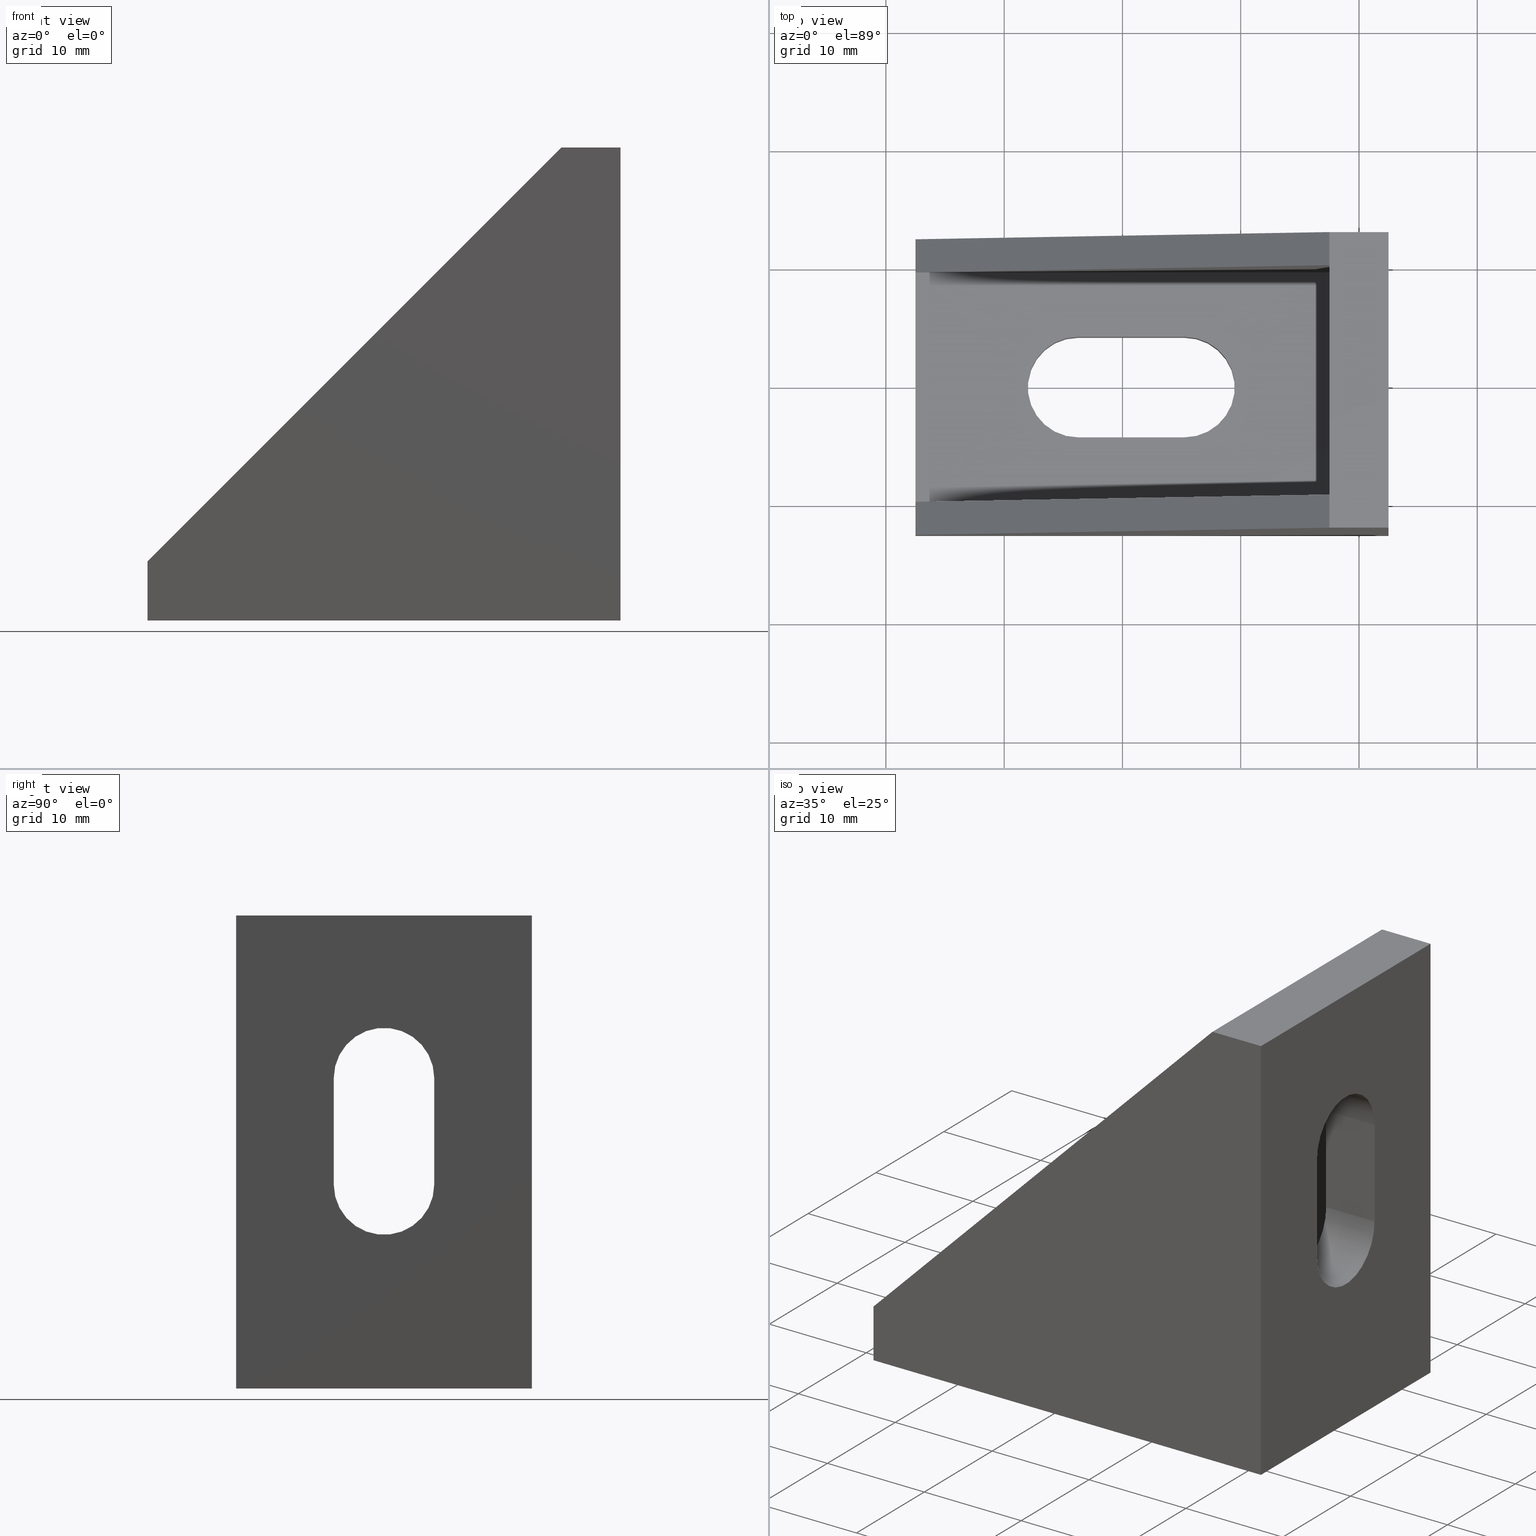
[diagram: canonical four-view strip — front | top / right | iso, engineering-drawing reading convention]
A machine part, canonical four-view strip (front | top / right | iso — engineering-drawing reading convention). The complete STEP part file that produces these views, byte-faithful:
ISO-10303-21;
HEADER;
/* Generated by software containing ST-Developer
 * from STEP Tools, Inc. (www.steptools.com) 
 */

FILE_DESCRIPTION(
/* description */ ('SQUADRETTA 40X40 L=25 ALL.'),
/* implementation_level */ '2;1');

FILE_NAME(
/* name */ 'C:\\Users\\Tecnico4\\Desktop\\DSQAL0000005.stp',
/* time_stamp */ '2024-08-07T11:08:25+02:00',
/* author */ ('tecnico4'),
/* organization */ (''),
/* preprocessor_version */ 'ST-DEVELOPER v18.1',
/* originating_system */ 'Autodesk Inventor 2022',
/* authorisation */ '');

FILE_SCHEMA (('AUTOMOTIVE_DESIGN { 1 0 10303 214 3 1 1 }'));
ENDSEC;

DATA;
#10=MECHANICAL_DESIGN_GEOMETRIC_PRESENTATION_REPRESENTATION('',(#13),#670);
#11=SHAPE_REPRESENTATION_RELATIONSHIP('SRR','None',#677,#12);
#12=ADVANCED_BREP_SHAPE_REPRESENTATION('',(#14),#669);
#13=STYLED_ITEM('',(#686),#14);
#14=MANIFOLD_SOLID_BREP('None',#401);
#15=FACE_BOUND('',#64,.T.);
#16=FACE_BOUND('',#66,.T.);
#17=FACE_BOUND('',#75,.T.);
#18=FACE_BOUND('',#77,.T.);
#19=PLANE('',#427);
#20=PLANE('',#431);
#21=PLANE('',#435);
#22=PLANE('',#439);
#23=PLANE('',#440);
#24=PLANE('',#441);
#25=PLANE('',#442);
#26=PLANE('',#443);
#27=PLANE('',#444);
#28=PLANE('',#445);
#29=PLANE('',#446);
#30=PLANE('',#447);
#31=PLANE('',#448);
#32=PLANE('',#449);
#33=PLANE('',#450);
#34=PLANE('',#451);
#35=FACE_OUTER_BOUND('',#55,.T.);
#36=FACE_OUTER_BOUND('',#56,.T.);
#37=FACE_OUTER_BOUND('',#57,.T.);
#38=FACE_OUTER_BOUND('',#58,.T.);
#39=FACE_OUTER_BOUND('',#59,.T.);
#40=FACE_OUTER_BOUND('',#60,.T.);
#41=FACE_OUTER_BOUND('',#61,.T.);
#42=FACE_OUTER_BOUND('',#62,.T.);
#43=FACE_OUTER_BOUND('',#63,.T.);
#44=FACE_OUTER_BOUND('',#65,.T.);
#45=FACE_OUTER_BOUND('',#67,.T.);
#46=FACE_OUTER_BOUND('',#68,.T.);
#47=FACE_OUTER_BOUND('',#69,.T.);
#48=FACE_OUTER_BOUND('',#70,.T.);
#49=FACE_OUTER_BOUND('',#71,.T.);
#50=FACE_OUTER_BOUND('',#72,.T.);
#51=FACE_OUTER_BOUND('',#73,.T.);
#52=FACE_OUTER_BOUND('',#74,.T.);
#53=FACE_OUTER_BOUND('',#76,.T.);
#54=FACE_OUTER_BOUND('',#78,.T.);
#55=EDGE_LOOP('',(#269,#270,#271,#272));
#56=EDGE_LOOP('',(#273,#274,#275,#276));
#57=EDGE_LOOP('',(#277,#278,#279,#280));
#58=EDGE_LOOP('',(#281,#282,#283,#284));
#59=EDGE_LOOP('',(#285,#286,#287,#288));
#60=EDGE_LOOP('',(#289,#290,#291,#292));
#61=EDGE_LOOP('',(#293,#294,#295,#296));
#62=EDGE_LOOP('',(#297,#298,#299,#300));
#63=EDGE_LOOP('',(#301,#302,#303,#304));
#64=EDGE_LOOP('',(#305,#306,#307,#308));
#65=EDGE_LOOP('',(#309,#310,#311,#312));
#66=EDGE_LOOP('',(#313,#314,#315,#316));
#67=EDGE_LOOP('',(#317,#318,#319,#320));
#68=EDGE_LOOP('',(#321,#322,#323,#324,#325));
#69=EDGE_LOOP('',(#326,#327,#328,#329,#330));
#70=EDGE_LOOP('',(#331,#332,#333,#334));
#71=EDGE_LOOP('',(#335,#336,#337,#338,#339));
#72=EDGE_LOOP('',(#340,#341,#342,#343,#344));
#73=EDGE_LOOP('',(#345,#346,#347,#348,#349,#350,#351,#352));
#74=EDGE_LOOP('',(#353,#354,#355,#356));
#75=EDGE_LOOP('',(#357,#358,#359,#360));
#76=EDGE_LOOP('',(#361,#362,#363,#364));
#77=EDGE_LOOP('',(#365,#366,#367,#368));
#78=EDGE_LOOP('',(#369,#370,#371,#372,#373,#374,#375,#376));
#79=LINE('',#562,#125);
#80=LINE('',#565,#126);
#81=LINE('',#568,#127);
#82=LINE('',#570,#128);
#83=LINE('',#571,#129);
#84=LINE('',#576,#130);
#85=LINE('',#579,#131);
#86=LINE('',#580,#132);
#87=LINE('',#586,#133);
#88=LINE('',#589,#134);
#89=LINE('',#592,#135);
#90=LINE('',#594,#136);
#91=LINE('',#595,#137);
#92=LINE('',#600,#138);
#93=LINE('',#603,#139);
#94=LINE('',#604,#140);
#95=LINE('',#608,#141);
#96=LINE('',#610,#142);
#97=LINE('',#612,#143);
#98=LINE('',#613,#144);
#99=LINE('',#616,#145);
#100=LINE('',#618,#146);
#101=LINE('',#619,#147);
#102=LINE('',#623,#148);
#103=LINE('',#625,#149);
#104=LINE('',#627,#150);
#105=LINE('',#628,#151);
#106=LINE('',#630,#152);
#107=LINE('',#631,#153);
#108=LINE('',#635,#154);
#109=LINE('',#637,#155);
#110=LINE('',#638,#156);
#111=LINE('',#639,#157);
#112=LINE('',#643,#158);
#113=LINE('',#645,#159);
#114=LINE('',#647,#160);
#115=LINE('',#648,#161);
#116=LINE('',#650,#162);
#117=LINE('',#651,#163);
#118=LINE('',#654,#164);
#119=LINE('',#656,#165);
#120=LINE('',#658,#166);
#121=LINE('',#659,#167);
#122=LINE('',#661,#168);
#123=LINE('',#663,#169);
#124=LINE('',#665,#170);
#125=VECTOR('',#458,10.);
#126=VECTOR('',#461,10.);
#127=VECTOR('',#464,10.);
#128=VECTOR('',#465,10.);
#129=VECTOR('',#466,10.);
#130=VECTOR('',#471,10.);
#131=VECTOR('',#476,10.);
#132=VECTOR('',#477,10.);
#133=VECTOR('',#482,10.);
#134=VECTOR('',#485,10.);
#135=VECTOR('',#488,10.);
#136=VECTOR('',#489,10.);
#137=VECTOR('',#490,10.);
#138=VECTOR('',#495,10.);
#139=VECTOR('',#500,10.);
#140=VECTOR('',#501,10.);
#141=VECTOR('',#504,15.);
#142=VECTOR('',#505,32.9999999998681);
#143=VECTOR('',#506,15.);
#144=VECTOR('',#507,32.9999999998681);
#145=VECTOR('',#510,32.9999999998681);
#146=VECTOR('',#511,15.);
#147=VECTOR('',#512,32.9999999998681);
#148=VECTOR('',#515,46.669047558126);
#149=VECTOR('',#516,10.);
#150=VECTOR('',#517,46.669047558126);
#151=VECTOR('',#518,10.);
#152=VECTOR('',#521,10.);
#153=VECTOR('',#522,10.);
#154=VECTOR('',#525,39.9999999998399);
#155=VECTOR('',#526,39.9999999998399);
#156=VECTOR('',#527,6.99999999997181);
#157=VECTOR('',#528,6.99999999997181);
#158=VECTOR('',#531,10.);
#159=VECTOR('',#532,46.669047558126);
#160=VECTOR('',#533,10.);
#161=VECTOR('',#534,46.669047558126);
#162=VECTOR('',#537,10.);
#163=VECTOR('',#538,10.);
#164=VECTOR('',#541,6.99999999997181);
#165=VECTOR('',#542,6.99999999997181);
#166=VECTOR('',#543,39.9999999998399);
#167=VECTOR('',#544,39.9999999998399);
#168=VECTOR('',#547,25.);
#169=VECTOR('',#550,25.);
#170=VECTOR('',#553,25.);
#171=CIRCLE('',#425,4.25);
#172=CIRCLE('',#426,4.25);
#173=CIRCLE('',#429,4.25);
#174=CIRCLE('',#430,4.25);
#175=CIRCLE('',#433,4.25);
#176=CIRCLE('',#434,4.25);
#177=CIRCLE('',#437,4.25);
#178=CIRCLE('',#438,4.25);
#179=VERTEX_POINT('',#558);
#180=VERTEX_POINT('',#559);
#181=VERTEX_POINT('',#561);
#182=VERTEX_POINT('',#563);
#183=VERTEX_POINT('',#567);
#184=VERTEX_POINT('',#569);
#185=VERTEX_POINT('',#573);
#186=VERTEX_POINT('',#575);
#187=VERTEX_POINT('',#582);
#188=VERTEX_POINT('',#583);
#189=VERTEX_POINT('',#585);
#190=VERTEX_POINT('',#587);
#191=VERTEX_POINT('',#591);
#192=VERTEX_POINT('',#593);
#193=VERTEX_POINT('',#597);
#194=VERTEX_POINT('',#599);
#195=VERTEX_POINT('',#606);
#196=VERTEX_POINT('',#607);
#197=VERTEX_POINT('',#609);
#198=VERTEX_POINT('',#611);
#199=VERTEX_POINT('',#615);
#200=VERTEX_POINT('',#617);
#201=VERTEX_POINT('',#621);
#202=VERTEX_POINT('',#622);
#203=VERTEX_POINT('',#624);
#204=VERTEX_POINT('',#626);
#205=VERTEX_POINT('',#633);
#206=VERTEX_POINT('',#634);
#207=VERTEX_POINT('',#636);
#208=VERTEX_POINT('',#641);
#209=VERTEX_POINT('',#642);
#210=VERTEX_POINT('',#644);
#211=VERTEX_POINT('',#646);
#212=VERTEX_POINT('',#653);
#213=VERTEX_POINT('',#655);
#214=VERTEX_POINT('',#657);
#215=EDGE_CURVE('',#179,#180,#171,.T.);
#216=EDGE_CURVE('',#179,#181,#79,.T.);
#217=EDGE_CURVE('',#182,#181,#172,.T.);
#218=EDGE_CURVE('',#180,#182,#80,.T.);
#219=EDGE_CURVE('',#183,#179,#81,.T.);
#220=EDGE_CURVE('',#183,#184,#82,.T.);
#221=EDGE_CURVE('',#181,#184,#83,.T.);
#222=EDGE_CURVE('',#185,#183,#173,.T.);
#223=EDGE_CURVE('',#185,#186,#84,.T.);
#224=EDGE_CURVE('',#184,#186,#174,.T.);
#225=EDGE_CURVE('',#180,#185,#85,.T.);
#226=EDGE_CURVE('',#186,#182,#86,.T.);
#227=EDGE_CURVE('',#187,#188,#175,.T.);
#228=EDGE_CURVE('',#187,#189,#87,.T.);
#229=EDGE_CURVE('',#190,#189,#176,.T.);
#230=EDGE_CURVE('',#188,#190,#88,.T.);
#231=EDGE_CURVE('',#191,#187,#89,.T.);
#232=EDGE_CURVE('',#191,#192,#90,.T.);
#233=EDGE_CURVE('',#189,#192,#91,.T.);
#234=EDGE_CURVE('',#193,#191,#177,.T.);
#235=EDGE_CURVE('',#193,#194,#92,.T.);
#236=EDGE_CURVE('',#192,#194,#178,.T.);
#237=EDGE_CURVE('',#188,#193,#93,.T.);
#238=EDGE_CURVE('',#194,#190,#94,.T.);
#239=EDGE_CURVE('',#195,#196,#95,.T.);
#240=EDGE_CURVE('',#197,#196,#96,.T.);
#241=EDGE_CURVE('',#198,#197,#97,.T.);
#242=EDGE_CURVE('',#198,#195,#98,.T.);
#243=EDGE_CURVE('',#199,#195,#99,.T.);
#244=EDGE_CURVE('',#199,#200,#100,.T.);
#245=EDGE_CURVE('',#200,#196,#101,.T.);
#246=EDGE_CURVE('',#201,#202,#102,.T.);
#247=EDGE_CURVE('',#203,#201,#103,.T.);
#248=EDGE_CURVE('',#203,#204,#104,.T.);
#249=EDGE_CURVE('',#204,#202,#105,.F.);
#250=EDGE_CURVE('',#204,#200,#106,.T.);
#251=EDGE_CURVE('',#203,#197,#107,.T.);
#252=EDGE_CURVE('',#205,#206,#108,.T.);
#253=EDGE_CURVE('',#206,#207,#109,.T.);
#254=EDGE_CURVE('',#207,#201,#110,.T.);
#255=EDGE_CURVE('',#202,#205,#111,.T.);
#256=EDGE_CURVE('',#208,#209,#112,.F.);
#257=EDGE_CURVE('',#209,#210,#113,.T.);
#258=EDGE_CURVE('',#211,#210,#114,.T.);
#259=EDGE_CURVE('',#208,#211,#115,.T.);
#260=EDGE_CURVE('',#210,#198,#116,.T.);
#261=EDGE_CURVE('',#209,#199,#117,.T.);
#262=EDGE_CURVE('',#208,#212,#118,.T.);
#263=EDGE_CURVE('',#213,#211,#119,.T.);
#264=EDGE_CURVE('',#214,#213,#120,.T.);
#265=EDGE_CURVE('',#212,#214,#121,.T.);
#266=EDGE_CURVE('',#212,#205,#122,.T.);
#267=EDGE_CURVE('',#214,#206,#123,.T.);
#268=EDGE_CURVE('',#213,#207,#124,.T.);
#269=ORIENTED_EDGE('',*,*,#215,.F.);
#270=ORIENTED_EDGE('',*,*,#216,.T.);
#271=ORIENTED_EDGE('',*,*,#217,.F.);
#272=ORIENTED_EDGE('',*,*,#218,.F.);
#273=ORIENTED_EDGE('',*,*,#219,.F.);
#274=ORIENTED_EDGE('',*,*,#220,.T.);
#275=ORIENTED_EDGE('',*,*,#221,.F.);
#276=ORIENTED_EDGE('',*,*,#216,.F.);
#277=ORIENTED_EDGE('',*,*,#222,.F.);
#278=ORIENTED_EDGE('',*,*,#223,.T.);
#279=ORIENTED_EDGE('',*,*,#224,.F.);
#280=ORIENTED_EDGE('',*,*,#220,.F.);
#281=ORIENTED_EDGE('',*,*,#225,.F.);
#282=ORIENTED_EDGE('',*,*,#218,.T.);
#283=ORIENTED_EDGE('',*,*,#226,.F.);
#284=ORIENTED_EDGE('',*,*,#223,.F.);
#285=ORIENTED_EDGE('',*,*,#227,.F.);
#286=ORIENTED_EDGE('',*,*,#228,.T.);
#287=ORIENTED_EDGE('',*,*,#229,.F.);
#288=ORIENTED_EDGE('',*,*,#230,.F.);
#289=ORIENTED_EDGE('',*,*,#231,.F.);
#290=ORIENTED_EDGE('',*,*,#232,.T.);
#291=ORIENTED_EDGE('',*,*,#233,.F.);
#292=ORIENTED_EDGE('',*,*,#228,.F.);
#293=ORIENTED_EDGE('',*,*,#234,.F.);
#294=ORIENTED_EDGE('',*,*,#235,.T.);
#295=ORIENTED_EDGE('',*,*,#236,.F.);
#296=ORIENTED_EDGE('',*,*,#232,.F.);
#297=ORIENTED_EDGE('',*,*,#237,.F.);
#298=ORIENTED_EDGE('',*,*,#230,.T.);
#299=ORIENTED_EDGE('',*,*,#238,.F.);
#300=ORIENTED_EDGE('',*,*,#235,.F.);
#301=ORIENTED_EDGE('',*,*,#239,.T.);
#302=ORIENTED_EDGE('',*,*,#240,.F.);
#303=ORIENTED_EDGE('',*,*,#241,.F.);
#304=ORIENTED_EDGE('',*,*,#242,.T.);
#305=ORIENTED_EDGE('',*,*,#215,.T.);
#306=ORIENTED_EDGE('',*,*,#225,.T.);
#307=ORIENTED_EDGE('',*,*,#222,.T.);
#308=ORIENTED_EDGE('',*,*,#219,.T.);
#309=ORIENTED_EDGE('',*,*,#239,.F.);
#310=ORIENTED_EDGE('',*,*,#243,.F.);
#311=ORIENTED_EDGE('',*,*,#244,.T.);
#312=ORIENTED_EDGE('',*,*,#245,.T.);
#313=ORIENTED_EDGE('',*,*,#227,.T.);
#314=ORIENTED_EDGE('',*,*,#237,.T.);
#315=ORIENTED_EDGE('',*,*,#234,.T.);
#316=ORIENTED_EDGE('',*,*,#231,.T.);
#317=ORIENTED_EDGE('',*,*,#246,.F.);
#318=ORIENTED_EDGE('',*,*,#247,.F.);
#319=ORIENTED_EDGE('',*,*,#248,.T.);
#320=ORIENTED_EDGE('',*,*,#249,.T.);
#321=ORIENTED_EDGE('',*,*,#245,.F.);
#322=ORIENTED_EDGE('',*,*,#250,.F.);
#323=ORIENTED_EDGE('',*,*,#248,.F.);
#324=ORIENTED_EDGE('',*,*,#251,.T.);
#325=ORIENTED_EDGE('',*,*,#240,.T.);
#326=ORIENTED_EDGE('',*,*,#252,.T.);
#327=ORIENTED_EDGE('',*,*,#253,.T.);
#328=ORIENTED_EDGE('',*,*,#254,.T.);
#329=ORIENTED_EDGE('',*,*,#246,.T.);
#330=ORIENTED_EDGE('',*,*,#255,.T.);
#331=ORIENTED_EDGE('',*,*,#256,.T.);
#332=ORIENTED_EDGE('',*,*,#257,.T.);
#333=ORIENTED_EDGE('',*,*,#258,.F.);
#334=ORIENTED_EDGE('',*,*,#259,.F.);
#335=ORIENTED_EDGE('',*,*,#242,.F.);
#336=ORIENTED_EDGE('',*,*,#260,.F.);
#337=ORIENTED_EDGE('',*,*,#257,.F.);
#338=ORIENTED_EDGE('',*,*,#261,.T.);
#339=ORIENTED_EDGE('',*,*,#243,.T.);
#340=ORIENTED_EDGE('',*,*,#262,.F.);
#341=ORIENTED_EDGE('',*,*,#259,.T.);
#342=ORIENTED_EDGE('',*,*,#263,.F.);
#343=ORIENTED_EDGE('',*,*,#264,.F.);
#344=ORIENTED_EDGE('',*,*,#265,.F.);
#345=ORIENTED_EDGE('',*,*,#255,.F.);
#346=ORIENTED_EDGE('',*,*,#249,.F.);
#347=ORIENTED_EDGE('',*,*,#250,.T.);
#348=ORIENTED_EDGE('',*,*,#244,.F.);
#349=ORIENTED_EDGE('',*,*,#261,.F.);
#350=ORIENTED_EDGE('',*,*,#256,.F.);
#351=ORIENTED_EDGE('',*,*,#262,.T.);
#352=ORIENTED_EDGE('',*,*,#266,.T.);
#353=ORIENTED_EDGE('',*,*,#252,.F.);
#354=ORIENTED_EDGE('',*,*,#266,.F.);
#355=ORIENTED_EDGE('',*,*,#265,.T.);
#356=ORIENTED_EDGE('',*,*,#267,.T.);
#357=ORIENTED_EDGE('',*,*,#229,.T.);
#358=ORIENTED_EDGE('',*,*,#233,.T.);
#359=ORIENTED_EDGE('',*,*,#236,.T.);
#360=ORIENTED_EDGE('',*,*,#238,.T.);
#361=ORIENTED_EDGE('',*,*,#253,.F.);
#362=ORIENTED_EDGE('',*,*,#267,.F.);
#363=ORIENTED_EDGE('',*,*,#264,.T.);
#364=ORIENTED_EDGE('',*,*,#268,.T.);
#365=ORIENTED_EDGE('',*,*,#217,.T.);
#366=ORIENTED_EDGE('',*,*,#221,.T.);
#367=ORIENTED_EDGE('',*,*,#224,.T.);
#368=ORIENTED_EDGE('',*,*,#226,.T.);
#369=ORIENTED_EDGE('',*,*,#254,.F.);
#370=ORIENTED_EDGE('',*,*,#268,.F.);
#371=ORIENTED_EDGE('',*,*,#263,.T.);
#372=ORIENTED_EDGE('',*,*,#258,.T.);
#373=ORIENTED_EDGE('',*,*,#260,.T.);
#374=ORIENTED_EDGE('',*,*,#241,.T.);
#375=ORIENTED_EDGE('',*,*,#251,.F.);
#376=ORIENTED_EDGE('',*,*,#247,.T.);
#377=CYLINDRICAL_SURFACE('',#424,4.25);
#378=CYLINDRICAL_SURFACE('',#428,4.25);
#379=CYLINDRICAL_SURFACE('',#432,4.25);
#380=CYLINDRICAL_SURFACE('',#436,4.25);
#381=ADVANCED_FACE('',(#35),#377,.F.);
#382=ADVANCED_FACE('',(#36),#19,.F.);
#383=ADVANCED_FACE('',(#37),#378,.F.);
#384=ADVANCED_FACE('',(#38),#20,.F.);
#385=ADVANCED_FACE('',(#39),#379,.F.);
#386=ADVANCED_FACE('',(#40),#21,.F.);
#387=ADVANCED_FACE('',(#41),#380,.F.);
#388=ADVANCED_FACE('',(#42),#22,.F.);
#389=ADVANCED_FACE('',(#43,#15),#23,.T.);
#390=ADVANCED_FACE('',(#44,#16),#24,.T.);
#391=ADVANCED_FACE('',(#45),#25,.F.);
#392=ADVANCED_FACE('',(#46),#26,.F.);
#393=ADVANCED_FACE('',(#47),#27,.T.);
#394=ADVANCED_FACE('',(#48),#28,.F.);
#395=ADVANCED_FACE('',(#49),#29,.F.);
#396=ADVANCED_FACE('',(#50),#30,.F.);
#397=ADVANCED_FACE('',(#51),#31,.T.);
#398=ADVANCED_FACE('',(#52,#17),#32,.T.);
#399=ADVANCED_FACE('',(#53,#18),#33,.T.);
#400=ADVANCED_FACE('',(#54),#34,.T.);
#401=CLOSED_SHELL('',(#381,#382,#383,#384,#385,#386,#387,#388,#389,#390,
#391,#392,#393,#394,#395,#396,#397,#398,#399,#400));
#402=DERIVED_UNIT_ELEMENT(#405,1.);
#403=DERIVED_UNIT_ELEMENT(#672,-3.);
#404=DIMENSIONAL_EXPONENTS(1.,0.,0.,0.,0.,0.,0.);
#405=(
CONVERSION_BASED_UNIT('gram',#407)
MASS_UNIT()
NAMED_UNIT(#404)
);
#406=(
MASS_UNIT()
NAMED_UNIT(*)
SI_UNIT(.KILO.,.GRAM.)
);
#407=MASS_MEASURE_WITH_UNIT(MASS_MEASURE(0.001),#406);
#408=DERIVED_UNIT((#402,#403));
#409=MEASURE_REPRESENTATION_ITEM('density measure',
POSITIVE_RATIO_MEASURE(2.7),#408);
#410=PROPERTY_DEFINITION_REPRESENTATION(#415,#412);
#411=PROPERTY_DEFINITION_REPRESENTATION(#416,#413);
#412=REPRESENTATION('material name',(#414),#669);
#413=REPRESENTATION('density',(#409),#669);
#414=DESCRIPTIVE_REPRESENTATION_ITEM('Alluminio 6060','Alluminio 6060');
#415=PROPERTY_DEFINITION('material property','material name',#679);
#416=PROPERTY_DEFINITION('material property','density of part',#679);
#417=DATE_TIME_ROLE('creation_date');
#418=APPLIED_DATE_AND_TIME_ASSIGNMENT(#419,#417,(#679));
#419=DATE_AND_TIME(#420,#421);
#420=CALENDAR_DATE(2014,6,2);
#421=LOCAL_TIME(0,0,0.,#422);
#422=COORDINATED_UNIVERSAL_TIME_OFFSET(0,0,.BEHIND.);
#423=AXIS2_PLACEMENT_3D('placement',#556,#452,#453);
#424=AXIS2_PLACEMENT_3D('',#557,#454,#455);
#425=AXIS2_PLACEMENT_3D('',#560,#456,#457);
#426=AXIS2_PLACEMENT_3D('',#564,#459,#460);
#427=AXIS2_PLACEMENT_3D('',#566,#462,#463);
#428=AXIS2_PLACEMENT_3D('',#572,#467,#468);
#429=AXIS2_PLACEMENT_3D('',#574,#469,#470);
#430=AXIS2_PLACEMENT_3D('',#577,#472,#473);
#431=AXIS2_PLACEMENT_3D('',#578,#474,#475);
#432=AXIS2_PLACEMENT_3D('',#581,#478,#479);
#433=AXIS2_PLACEMENT_3D('',#584,#480,#481);
#434=AXIS2_PLACEMENT_3D('',#588,#483,#484);
#435=AXIS2_PLACEMENT_3D('',#590,#486,#487);
#436=AXIS2_PLACEMENT_3D('',#596,#491,#492);
#437=AXIS2_PLACEMENT_3D('',#598,#493,#494);
#438=AXIS2_PLACEMENT_3D('',#601,#496,#497);
#439=AXIS2_PLACEMENT_3D('',#602,#498,#499);
#440=AXIS2_PLACEMENT_3D('',#605,#502,#503);
#441=AXIS2_PLACEMENT_3D('',#614,#508,#509);
#442=AXIS2_PLACEMENT_3D('',#620,#513,#514);
#443=AXIS2_PLACEMENT_3D('',#629,#519,#520);
#444=AXIS2_PLACEMENT_3D('',#632,#523,#524);
#445=AXIS2_PLACEMENT_3D('',#640,#529,#530);
#446=AXIS2_PLACEMENT_3D('',#649,#535,#536);
#447=AXIS2_PLACEMENT_3D('',#652,#539,#540);
#448=AXIS2_PLACEMENT_3D('',#660,#545,#546);
#449=AXIS2_PLACEMENT_3D('',#662,#548,#549);
#450=AXIS2_PLACEMENT_3D('',#664,#551,#552);
#451=AXIS2_PLACEMENT_3D('',#666,#554,#555);
#452=DIRECTION('axis',(0.,0.,1.));
#453=DIRECTION('refdir',(1.,0.,0.));
#454=DIRECTION('center_axis',(1.,0.,0.));
#455=DIRECTION('ref_axis',(0.,-1.,0.));
#456=DIRECTION('center_axis',(1.,0.,0.));
#457=DIRECTION('ref_axis',(0.,-1.,0.));
#458=DIRECTION('',(1.,0.,0.));
#459=DIRECTION('center_axis',(-1.,0.,0.));
#460=DIRECTION('ref_axis',(0.,-1.,0.));
#461=DIRECTION('',(1.,0.,0.));
#462=DIRECTION('center_axis',(0.,1.,-2.46716227694479E-16));
#463=DIRECTION('ref_axis',(0.,2.46716227694479E-16,1.));
#464=DIRECTION('',(0.,2.46716227694479E-16,1.));
#465=DIRECTION('',(1.,0.,0.));
#466=DIRECTION('',(0.,-2.46716227694479E-16,-1.));
#467=DIRECTION('center_axis',(1.,0.,0.));
#468=DIRECTION('ref_axis',(0.,1.,0.));
#469=DIRECTION('center_axis',(1.,0.,0.));
#470=DIRECTION('ref_axis',(0.,1.,0.));
#471=DIRECTION('',(1.,0.,0.));
#472=DIRECTION('center_axis',(-1.,0.,0.));
#473=DIRECTION('ref_axis',(0.,1.,0.));
#474=DIRECTION('center_axis',(0.,-1.,0.));
#475=DIRECTION('ref_axis',(0.,0.,-1.));
#476=DIRECTION('',(0.,0.,-1.));
#477=DIRECTION('',(0.,0.,1.));
#478=DIRECTION('center_axis',(0.,0.,-1.));
#479=DIRECTION('ref_axis',(0.,-1.,0.));
#480=DIRECTION('center_axis',(0.,0.,-1.));
#481=DIRECTION('ref_axis',(0.,-1.,0.));
#482=DIRECTION('',(0.,0.,-1.));
#483=DIRECTION('center_axis',(0.,0.,1.));
#484=DIRECTION('ref_axis',(0.,-1.,0.));
#485=DIRECTION('',(0.,0.,-1.));
#486=DIRECTION('center_axis',(0.,1.,0.));
#487=DIRECTION('ref_axis',(1.,0.,0.));
#488=DIRECTION('',(1.,0.,0.));
#489=DIRECTION('',(0.,0.,-1.));
#490=DIRECTION('',(-1.,0.,0.));
#491=DIRECTION('center_axis',(0.,0.,-1.));
#492=DIRECTION('ref_axis',(5.2245789394125E-16,1.,0.));
#493=DIRECTION('center_axis',(0.,0.,-1.));
#494=DIRECTION('ref_axis',(5.2245789394125E-16,1.,0.));
#495=DIRECTION('',(0.,0.,-1.));
#496=DIRECTION('center_axis',(0.,0.,1.));
#497=DIRECTION('ref_axis',(5.2245789394125E-16,1.,0.));
#498=DIRECTION('center_axis',(0.,-1.,0.));
#499=DIRECTION('ref_axis',(-1.,0.,0.));
#500=DIRECTION('',(-1.,0.,0.));
#501=DIRECTION('',(1.,0.,0.));
#502=DIRECTION('center_axis',(-1.,0.,0.));
#503=DIRECTION('ref_axis',(0.,0.,1.));
#504=DIRECTION('',(0.,-1.,0.));
#505=DIRECTION('',(0.,0.,-1.));
#506=DIRECTION('',(0.,-1.,0.));
#507=DIRECTION('',(0.,0.,-1.));
#508=DIRECTION('center_axis',(0.,0.,1.));
#509=DIRECTION('ref_axis',(1.,0.,0.));
#510=DIRECTION('',(1.,0.,0.));
#511=DIRECTION('',(0.,-1.,0.));
#512=DIRECTION('',(1.,0.,0.));
#513=DIRECTION('center_axis',(0.707106781186552,-4.32978E-17,-0.707106781186543));
#514=DIRECTION('ref_axis',(-0.707106781186543,0.,-0.707106781186552));
#515=DIRECTION('',(-0.707106781186543,-4.75785593542436E-17,-0.707106781186552));
#516=DIRECTION('',(-6.12323359809174E-17,-1.,0.));
#517=DIRECTION('',(-0.707106781186543,-4.75785593542436E-17,-0.707106781186552));
#518=DIRECTION('',(0.,1.,-6.12323359809182E-17));
#519=DIRECTION('center_axis',(0.,-1.,0.));
#520=DIRECTION('ref_axis',(0.,0.,-1.));
#521=DIRECTION('',(0.,0.,-1.));
#522=DIRECTION('',(1.,0.,0.));
#523=DIRECTION('center_axis',(0.,-1.,0.));
#524=DIRECTION('ref_axis',(0.,0.,-1.));
#525=DIRECTION('',(1.,0.,0.));
#526=DIRECTION('',(0.,0.,1.));
#527=DIRECTION('',(-1.,0.,0.));
#528=DIRECTION('',(0.,0.,-1.));
#529=DIRECTION('center_axis',(0.707106781186552,-4.32978E-17,-0.707106781186543));
#530=DIRECTION('ref_axis',(-0.707106781186543,0.,-0.707106781186552));
#531=DIRECTION('',(0.,1.,-6.12323359809182E-17));
#532=DIRECTION('',(0.707106781186543,2.37892796771218E-17,0.707106781186552));
#533=DIRECTION('',(-6.12323359809174E-17,-1.,0.));
#534=DIRECTION('',(0.707106781186543,4.75785593542436E-17,0.707106781186552));
#535=DIRECTION('center_axis',(0.,1.,0.));
#536=DIRECTION('ref_axis',(0.,0.,1.));
#537=DIRECTION('',(1.,0.,0.));
#538=DIRECTION('',(0.,0.,-1.));
#539=DIRECTION('center_axis',(0.,-1.,0.));
#540=DIRECTION('ref_axis',(0.,0.,-1.));
#541=DIRECTION('',(0.,0.,-1.));
#542=DIRECTION('',(-1.,0.,0.));
#543=DIRECTION('',(0.,0.,1.));
#544=DIRECTION('',(1.,0.,0.));
#545=DIRECTION('center_axis',(-1.,0.,0.));
#546=DIRECTION('ref_axis',(0.,0.,1.));
#547=DIRECTION('',(0.,-1.,0.));
#548=DIRECTION('center_axis',(0.,0.,-1.));
#549=DIRECTION('ref_axis',(-1.,0.,0.));
#550=DIRECTION('',(0.,-1.,0.));
#551=DIRECTION('center_axis',(1.,0.,0.));
#552=DIRECTION('ref_axis',(0.,0.,-1.));
#553=DIRECTION('',(0.,-1.,0.));
#554=DIRECTION('center_axis',(0.,0.,1.));
#555=DIRECTION('ref_axis',(1.,0.,0.));
#556=CARTESIAN_POINT('',(0.,0.,0.));
#557=CARTESIAN_POINT('Origin',(15.4999999999382,3.33066907387547E-15,26.25));
#558=CARTESIAN_POINT('',(17.4999999999382,4.25000000000001,26.25));
#559=CARTESIAN_POINT('',(17.4999999999382,-4.25,26.25));
#560=CARTESIAN_POINT('Origin',(17.4999999999382,3.33066907387547E-15,26.25));
#561=CARTESIAN_POINT('',(22.4999999999382,4.25000000000001,26.25));
#562=CARTESIAN_POINT('',(15.4999999999382,4.25000000000001,26.25));
#563=CARTESIAN_POINT('',(22.4999999999382,-4.25,26.25));
#564=CARTESIAN_POINT('Origin',(22.49999999991,3.33066907387547E-15,26.25));
#565=CARTESIAN_POINT('',(15.4999999999382,-4.25,26.25));
#566=CARTESIAN_POINT('Origin',(15.4999999999382,4.25,17.25));
#567=CARTESIAN_POINT('',(17.4999999999382,4.25,17.25));
#568=CARTESIAN_POINT('',(17.4999999999382,4.25000000000001,28.6249999999202));
#569=CARTESIAN_POINT('',(22.4999999999382,4.25,17.25));
#570=CARTESIAN_POINT('',(15.4999999999382,4.25,17.25));
#571=CARTESIAN_POINT('',(22.49999999991,4.25,8.6249783464566));
#572=CARTESIAN_POINT('Origin',(15.4999999999382,3.33066907387547E-15,17.25));
#573=CARTESIAN_POINT('',(17.4999999999382,-4.25,17.25));
#574=CARTESIAN_POINT('Origin',(17.4999999999382,3.33066907387547E-15,17.25));
#575=CARTESIAN_POINT('',(22.4999999999382,-4.25,17.25));
#576=CARTESIAN_POINT('',(15.4999999999382,-4.25,17.25));
#577=CARTESIAN_POINT('Origin',(22.49999999991,3.33066907387547E-15,17.25));
#578=CARTESIAN_POINT('Origin',(15.4999999999382,-4.25,26.25));
#579=CARTESIAN_POINT('',(17.4999999999382,-4.25,33.1249999999202));
#580=CARTESIAN_POINT('',(22.49999999991,-4.25,13.1249783464566));
#581=CARTESIAN_POINT('Origin',(5.24999999990997,0.,6.99999999997226));
#582=CARTESIAN_POINT('',(5.24999999990997,4.25,4.99999999997226));
#583=CARTESIAN_POINT('',(5.24999999990997,-4.25,4.99999999997226));
#584=CARTESIAN_POINT('Origin',(5.24999999990997,0.,4.99999999997226));
#585=CARTESIAN_POINT('',(5.24999999990997,4.25,-2.77378120472349E-11));
#586=CARTESIAN_POINT('',(5.24999999990997,4.25,6.99999999997226));
#587=CARTESIAN_POINT('',(5.24999999990997,-4.25,-2.77378120472349E-11));
#588=CARTESIAN_POINT('Origin',(5.24999999990997,0.,-1.11022302462516E-15));
#589=CARTESIAN_POINT('',(5.24999999990997,-4.25,6.99999999997226));
#590=CARTESIAN_POINT('Origin',(-3.75000000009003,4.25,6.99999999997226));
#591=CARTESIAN_POINT('',(-3.75000000009003,4.25,4.99999999997226));
#592=CARTESIAN_POINT('',(5.87499999992406,4.25,4.99999999997226));
#593=CARTESIAN_POINT('',(-3.75000000009003,4.25,-2.77378120472349E-11));
#594=CARTESIAN_POINT('',(-3.75000000009003,4.25,6.99999999997226));
#595=CARTESIAN_POINT('',(-10.6250216535536,4.25,-5.55111512312578E-16));
#596=CARTESIAN_POINT('Origin',(-3.75000000009003,0.,6.99999999997226));
#597=CARTESIAN_POINT('',(-3.75000000009003,-4.25,4.99999999997226));
#598=CARTESIAN_POINT('Origin',(-3.75000000009003,0.,4.99999999997226));
#599=CARTESIAN_POINT('',(-3.75000000009003,-4.25,-2.77378120472349E-11));
#600=CARTESIAN_POINT('',(-3.75000000009003,-4.25,6.99999999997226));
#601=CARTESIAN_POINT('Origin',(-3.75000000009003,0.,-1.11022302462516E-15));
#602=CARTESIAN_POINT('Origin',(5.24999999990997,-4.25,6.99999999997226));
#603=CARTESIAN_POINT('',(10.3749999999241,-4.25,4.99999999997226));
#604=CARTESIAN_POINT('',(-6.12502165355363,-4.25,-5.55111512312578E-16));
#605=CARTESIAN_POINT('Origin',(17.4999999999382,12.5,39.9999999998404));
#606=CARTESIAN_POINT('',(17.4999999999382,9.7,4.99999999997226));
#607=CARTESIAN_POINT('',(17.4999999999382,-9.7,4.99999999997226));
#608=CARTESIAN_POINT('',(17.4999999999382,7.5,4.99999999997226));
#609=CARTESIAN_POINT('',(17.4999999999382,-9.7,39.9999999998404));
#610=CARTESIAN_POINT('',(17.4999999999382,-9.7,39.9999999998404));
#611=CARTESIAN_POINT('',(17.4999999999382,9.7,39.9999999998404));
#612=CARTESIAN_POINT('',(17.4999999999382,7.5,39.9999999998404));
#613=CARTESIAN_POINT('',(17.4999999999382,9.7,39.9999999998404));
#614=CARTESIAN_POINT('Origin',(15.4999999999382,12.5,4.99999999997226));
#615=CARTESIAN_POINT('',(-17.49999999993,9.7,4.99999999997181));
#616=CARTESIAN_POINT('',(-17.49999999993,9.7,4.99999999997181));
#617=CARTESIAN_POINT('',(-17.49999999993,-9.7,4.99999999997181));
#618=CARTESIAN_POINT('',(-17.49999999993,7.5,4.99999999997181));
#619=CARTESIAN_POINT('',(-17.49999999993,-9.7,4.99999999997181));
#620=CARTESIAN_POINT('Origin',(16.4970205614112,-12.5,39.0029794383673));
#621=CARTESIAN_POINT('',(17.4940411228842,-12.5,39.9999999998404));
#622=CARTESIAN_POINT('',(-17.49999999993,-12.5,5.00595887702575));
#623=CARTESIAN_POINT('',(16.4970205614112,-12.5,39.0029794383673));
#624=CARTESIAN_POINT('',(17.4940411228842,-9.7,39.9999999998404));
#625=CARTESIAN_POINT('',(17.4940411228842,2.16535436293858E-5,39.9999999998404));
#626=CARTESIAN_POINT('',(-17.49999999993,-9.7,5.00595887702575));
#627=CARTESIAN_POINT('',(16.4970205614112,-9.7,39.0029794383673));
#628=CARTESIAN_POINT('',(-17.49999999993,2.16535436237203E-5,5.00595887702575));
#629=CARTESIAN_POINT('Origin',(-21.5000047243793,-9.7,-4.00000472444935));
#630=CARTESIAN_POINT('',(-17.49999999993,-9.7,1.50001929130485));
#631=CARTESIAN_POINT('',(0.500019291308942,-9.7,39.9999999998404));
#632=CARTESIAN_POINT('Origin',(-17.5000433070172,-12.5,-4.3307087252E-5));
#633=CARTESIAN_POINT('',(-17.49999999993,-12.5,7.654042E-16));
#634=CARTESIAN_POINT('',(22.49999999991,-12.5,4.555128E-13));
#635=CARTESIAN_POINT('',(-17.49999999993,-12.5,7.654042E-16));
#636=CARTESIAN_POINT('',(22.49999999991,-12.5,39.9999999998404));
#637=CARTESIAN_POINT('',(22.49999999991,-12.5,4.555128E-13));
#638=CARTESIAN_POINT('',(22.49999999991,-12.5,39.9999999998404));
#639=CARTESIAN_POINT('',(-17.49999999993,-12.5,6.99999999997181));
#640=CARTESIAN_POINT('Origin',(-16.5029794384569,12.5,6.00297943849878));
#641=CARTESIAN_POINT('',(-17.49999999993,12.5,5.00595887702573));
#642=CARTESIAN_POINT('',(-17.49999999993,9.7,5.00595887702573));
#643=CARTESIAN_POINT('',(-17.49999999993,12.5000216535436,5.00595887702573));
#644=CARTESIAN_POINT('',(17.4940411228842,9.7,39.9999999998404));
#645=CARTESIAN_POINT('',(-16.5029794384569,9.7,6.00297943849878));
#646=CARTESIAN_POINT('',(17.4940411228842,12.5,39.9999999998404));
#647=CARTESIAN_POINT('',(17.4940411228842,12.5000216535436,39.9999999998404));
#648=CARTESIAN_POINT('',(-16.5029794384569,12.5,6.00297943849878));
#649=CARTESIAN_POINT('Origin',(26.5000047243593,9.7,-4.00000472444936));
#650=CARTESIAN_POINT('',(24.5000240156783,9.7,39.9999999998404));
#651=CARTESIAN_POINT('',(-17.49999999993,9.7,1.50001929130485));
#652=CARTESIAN_POINT('Origin',(-17.5000433070172,12.5,-4.3307087254E-5));
#653=CARTESIAN_POINT('',(-17.49999999993,12.5,-7.654042E-16));
#654=CARTESIAN_POINT('',(-17.49999999993,12.5,6.99999999997181));
#655=CARTESIAN_POINT('',(22.49999999991,12.5,39.9999999998404));
#656=CARTESIAN_POINT('',(22.49999999991,12.5,39.9999999998404));
#657=CARTESIAN_POINT('',(22.49999999991,12.5,4.539819E-13));
#658=CARTESIAN_POINT('',(22.49999999991,12.5,4.539819E-13));
#659=CARTESIAN_POINT('',(-17.49999999993,12.5,-7.654042E-16));
#660=CARTESIAN_POINT('Origin',(-17.49999999993,12.5000433070872,7.00004330705906));
#661=CARTESIAN_POINT('',(-17.49999999993,12.5,-7.654042E-16));
#662=CARTESIAN_POINT('Origin',(-17.5000433070172,12.5000433070872,-7.654069E-16));
#663=CARTESIAN_POINT('',(22.49999999991,12.5,4.539819E-13));
#664=CARTESIAN_POINT('Origin',(22.49999999991,12.5000433070872,-4.3307086799E-5));
#665=CARTESIAN_POINT('',(22.49999999991,12.5,39.9999999998404));
#666=CARTESIAN_POINT('Origin',(22.5000433069972,12.5000433070873,39.9999999998404));
#667=UNCERTAINTY_MEASURE_WITH_UNIT(LENGTH_MEASURE(0.01),#671,
'DISTANCE_ACCURACY_VALUE',
'Maximum model space distance between geometric entities at asserted c
onnectivities');
#668=UNCERTAINTY_MEASURE_WITH_UNIT(LENGTH_MEASURE(0.01),#671,
'DISTANCE_ACCURACY_VALUE',
'Maximum model space distance between geometric entities at asserted c
onnectivities');
#669=(
GEOMETRIC_REPRESENTATION_CONTEXT(3)
GLOBAL_UNCERTAINTY_ASSIGNED_CONTEXT((#667))
GLOBAL_UNIT_ASSIGNED_CONTEXT((#671,#673,#674))
REPRESENTATION_CONTEXT('','3D')
);
#670=(
GEOMETRIC_REPRESENTATION_CONTEXT(3)
GLOBAL_UNCERTAINTY_ASSIGNED_CONTEXT((#668))
GLOBAL_UNIT_ASSIGNED_CONTEXT((#671,#673,#674))
REPRESENTATION_CONTEXT('','3D')
);
#671=(
LENGTH_UNIT()
NAMED_UNIT(*)
SI_UNIT(.MILLI.,.METRE.)
);
#672=(
LENGTH_UNIT()
NAMED_UNIT(*)
SI_UNIT(.CENTI.,.METRE.)
);
#673=(
NAMED_UNIT(*)
PLANE_ANGLE_UNIT()
SI_UNIT($,.RADIAN.)
);
#674=(
NAMED_UNIT(*)
SI_UNIT($,.STERADIAN.)
SOLID_ANGLE_UNIT()
);
#675=SHAPE_DEFINITION_REPRESENTATION(#676,#677);
#676=PRODUCT_DEFINITION_SHAPE('',$,#679);
#677=SHAPE_REPRESENTATION('',(#423),#669);
#678=PRODUCT_DEFINITION_CONTEXT('part definition',#683,'design');
#679=PRODUCT_DEFINITION('DSQAL0000005','DSQAL0000005',#680,#678);
#680=PRODUCT_DEFINITION_FORMATION('A',$,#685);
#681=PRODUCT_RELATED_PRODUCT_CATEGORY('DSQAL0000005','DSQAL0000005',(#685));
#682=APPLICATION_PROTOCOL_DEFINITION('international standard',
'automotive_design',2009,#683);
#683=APPLICATION_CONTEXT(
'Core Data for Automotive Mechanical Design Process');
#684=PRODUCT_CONTEXT('part definition',#683,'mechanical');
#685=PRODUCT('DSQAL0000005','DSQAL0000005','SQUADRETTA 40X40 L=25 ALL.',
(#684));
#686=PRESENTATION_STYLE_ASSIGNMENT((#687));
#687=SURFACE_STYLE_USAGE(.BOTH.,#690);
#688=SURFACE_STYLE_RENDERING_WITH_PROPERTIES($,#694,(#689));
#689=SURFACE_STYLE_TRANSPARENT(0.);
#690=SURFACE_SIDE_STYLE('',(#691,#688));
#691=SURFACE_STYLE_FILL_AREA(#692);
#692=FILL_AREA_STYLE('',(#693));
#693=FILL_AREA_STYLE_COLOUR('',#694);
#694=COLOUR_RGB('',0.956862745098039,0.956862745098039,0.956862745098039);
ENDSEC;
END-ISO-10303-21;
